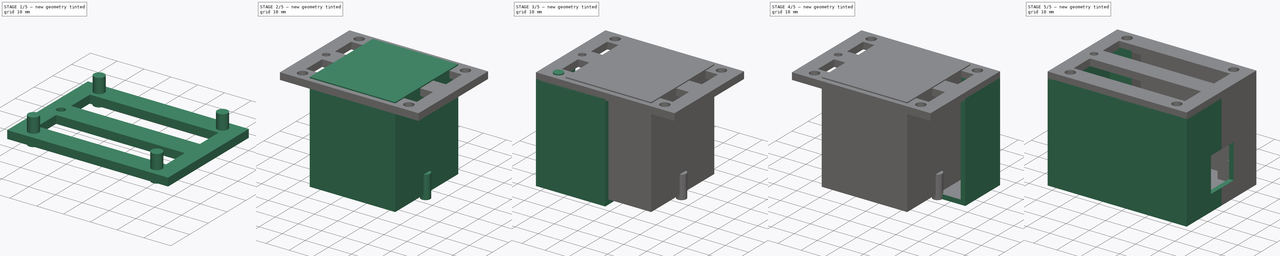
[diagram: build sequence overview — one tinted view per stage of 5, left to right]
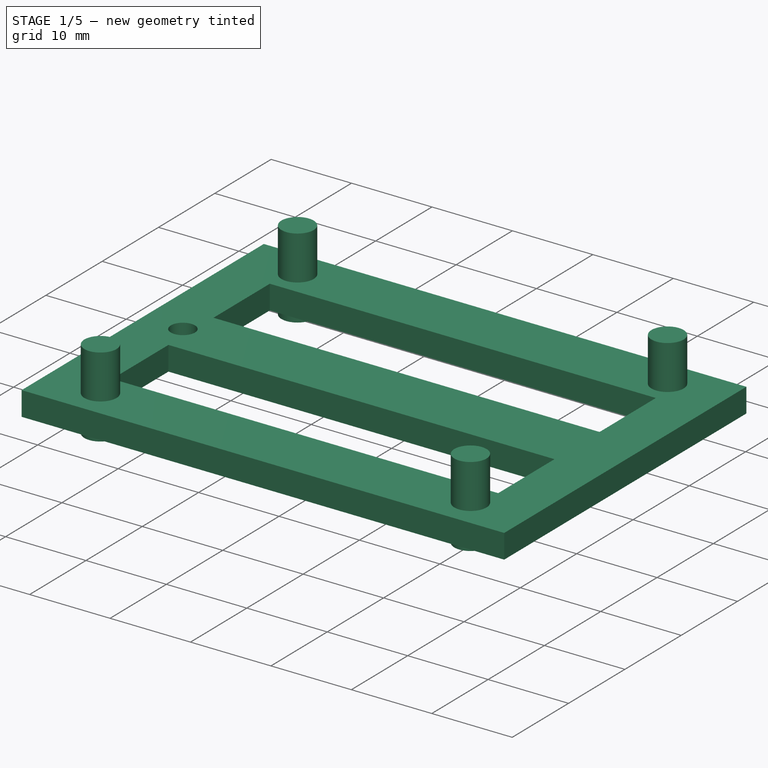
[diagram: stage 1 of 5 — iso view after this stage's code; geometry added in this stage tinted green]
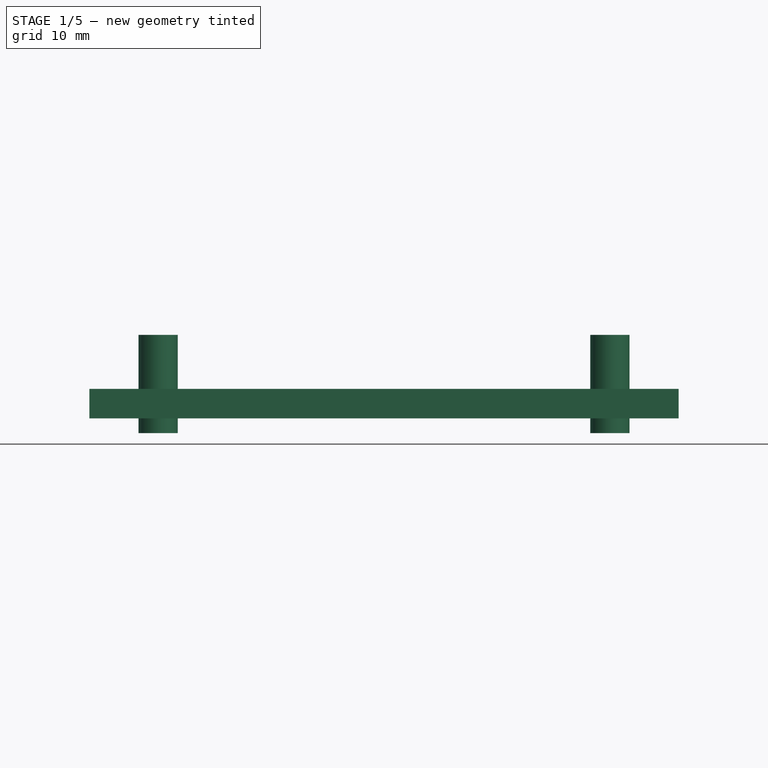
[diagram: stage 1 of 5 — front view after this stage's code; geometry added in this stage tinted green]
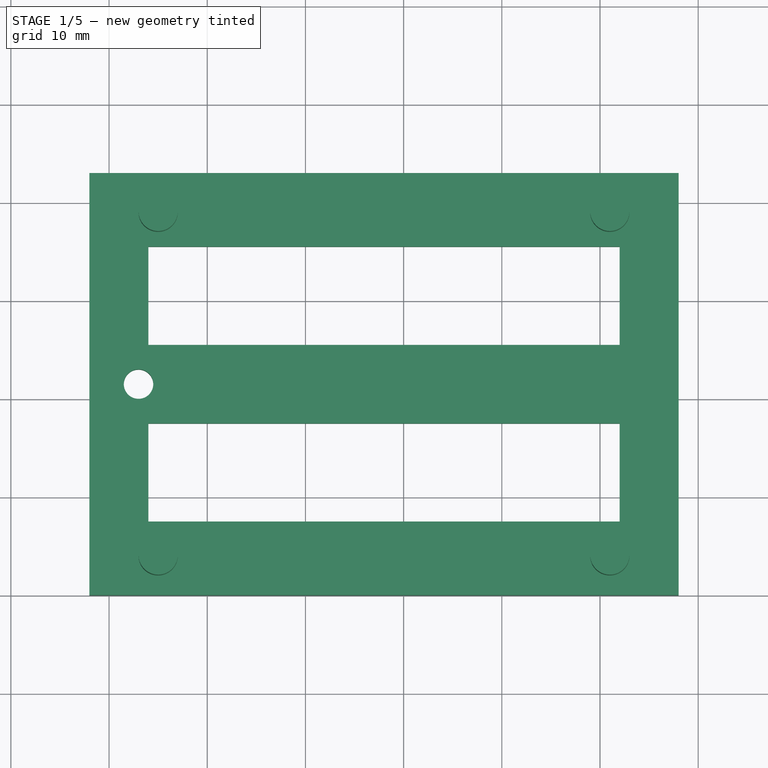
[diagram: stage 1 of 5 — top view after this stage's code; geometry added in this stage tinted green]
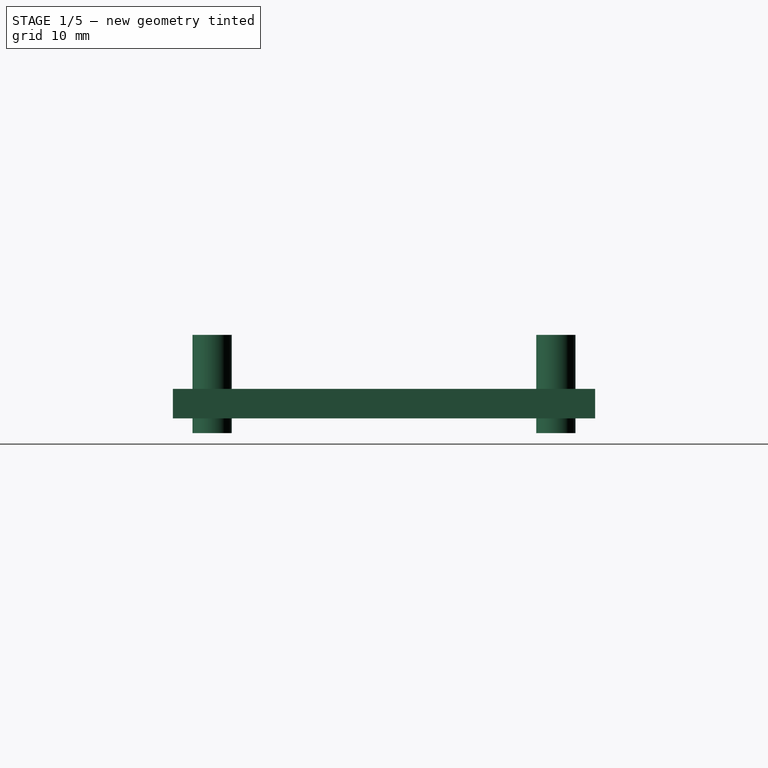
[diagram: stage 1 of 5 — right view after this stage's code; geometry added in this stage tinted green]
FCSTD DOCUMENT  (FreeCAD 0.17R13522 (Git))
Label: esp32_box
License: All rights reserved
LicenseURL: http://en.wikipedia.org/wiki/All_rights_reserved
objects: Part::Cylinder×7, Part::Box×6, Part::MultiFuse×6, Part::Cut×5, Part::Mirroring×3, Sketcher::SketchObject×1, Part::Extrusion×1
note: 29 computed .brp shape members not serialized (recipe doc carries the construction recipe); baked Part::Feature solids carry a one-line shape summary decoded from their .brp

FEATURE [Sketcher::SketchObject] Sketch001
  MapMode = 5
  sketch-geometry (14):
    g0: LineSegment StartX=-60 StartY=43 StartZ=0 EndX=0 EndY=43 EndZ=0
    g1: LineSegment StartX=0 StartY=43 StartZ=0 EndX=0 EndY=0 EndZ=0
    g2: LineSegment StartX=0 StartY=0 StartZ=0 EndX=-60 EndY=0 EndZ=0
    g3: LineSegment StartX=-60 StartY=0 StartZ=0 EndX=-60 EndY=43 EndZ=0
    g4: LineSegment StartX=-54 StartY=7.5 StartZ=0 EndX=-6 EndY=7.5 EndZ=0
    g5: LineSegment StartX=-6 StartY=7.5 StartZ=0 EndX=-6 EndY=17.5 EndZ=0
    g6: LineSegment StartX=-6 StartY=17.5 StartZ=0 EndX=-54 EndY=17.5 EndZ=0
    g7: LineSegment StartX=-54 StartY=17.5 StartZ=0 EndX=-54 EndY=7.5 EndZ=0
    g8: LineSegment [constr] StartX=-60 StartY=21.5 StartZ=0 EndX=0 EndY=21.5 EndZ=0
    g9: LineSegment StartX=-54 StartY=25.5 StartZ=0 EndX=-54 EndY=35.5 EndZ=0
    g10: LineSegment StartX=-6 StartY=25.5 StartZ=0 EndX=-54 EndY=25.5 EndZ=0
    g11: LineSegment StartX=-6 StartY=35.5 StartZ=0 EndX=-6 EndY=25.5 EndZ=0
    g12: LineSegment StartX=-54 StartY=35.5 StartZ=0 EndX=-6 EndY=35.5 EndZ=0
    g13: Circle CenterX=-55 CenterY=21.5 CenterZ=0 NormalX=0 NormalY=0 NormalZ=1 AngleXU=0 Radius=1.5
  constraints (40):
    c: Coincident(g0,g1)
    c: Coincident(g1,g2)
    c: Coincident(g2,g3)
    c: Coincident(g3,g0)
    c: Horizontal(g0)
    c: Horizontal(g2)
    c: Vertical(g1)
    c: Vertical(g3)
    c: Coincident(g4,g5)
    c: Coincident(g5,g6)
    c: Coincident(g6,g7)
    c: Coincident(g7,g4)
    c: Horizontal(g4)
    c: Horizontal(g6)
    c: Vertical(g5)
    c: Vertical(g7)
    c: DistanceX(g2,g2) = 60
    c: DistanceY(g1,g0) = 43
    c: Coincident(g-1,g1)
    c: DistanceX(g4,g-1) = 6
    c: DistanceX(g4,g4) = 48
    c: DistanceY(g2,g4) = 7.5
    c: DistanceY(g4,g6) = 10
    c: Horizontal(g8)
    c: DistanceX(g2,g8) = 0
    c: DistanceX(g8,g-1) = 0
    c: Symmetric(g-1,g0,g8)
    c: Coincident(g12,g11)
    c: Coincident(g11,g10)
    c: Coincident(g10,g9)
    c: Coincident(g9,g12)
    c: Horizontal(g12)
    c: Horizontal(g10)
    c: Vertical(g11)
    c: Vertical(g9)
    c: Symmetric(g11,g4,g8)
    c: Symmetric(g9,g6,g8)
    c: Radius(g13) = 1.5
    c: PointOnObject(g13,g8)
    c: DistanceX(g0,g13) = 5
FEATURE [Part::Extrusion] Extrude001
  Base = -> Sketch001
  Dir = (0,0,1)
  DirMode = 2
  FaceMakerClass = Part::FaceMakerBullseye
  LengthFwd = 3
  LengthRev = 0
  Placement = pos=(58,0,41.5) rot=(0,0,1;0rad)
  Solid = true
  Symmetric = false
FEATURE [Part::Cylinder] Cylinder003
  Angle = 360
  AttacherType = Attacher::AttachEngine3D
  Height = 10
  Placement = pos=(5,4,40) rot=(0,0,1;0rad)
  Radius = 2
FEATURE [Part::Cylinder] Cylinder004
  Angle = 360
  AttacherType = Attacher::AttachEngine3D
  Height = 10
  Placement = pos=(5,39,40) rot=(0,0,1;0rad)
  Radius = 2
FEATURE [Part::Cylinder] Cylinder005
  Angle = 360
  AttacherType = Attacher::AttachEngine3D
  Height = 10
  Placement = pos=(51,39,40) rot=(0,0,1;0rad)
  Radius = 2
FEATURE [Part::Cylinder] Cylinder006
  Angle = 360
  AttacherType = Attacher::AttachEngine3D
  Height = 10
  Placement = pos=(51,4,40) rot=(0,0,1;0rad)
  Radius = 2
FEATURE [Part::MultiFuse] Fusion008
  Shapes = -> [Cylinder003,Cylinder004,Cylinder005,Cylinder006]
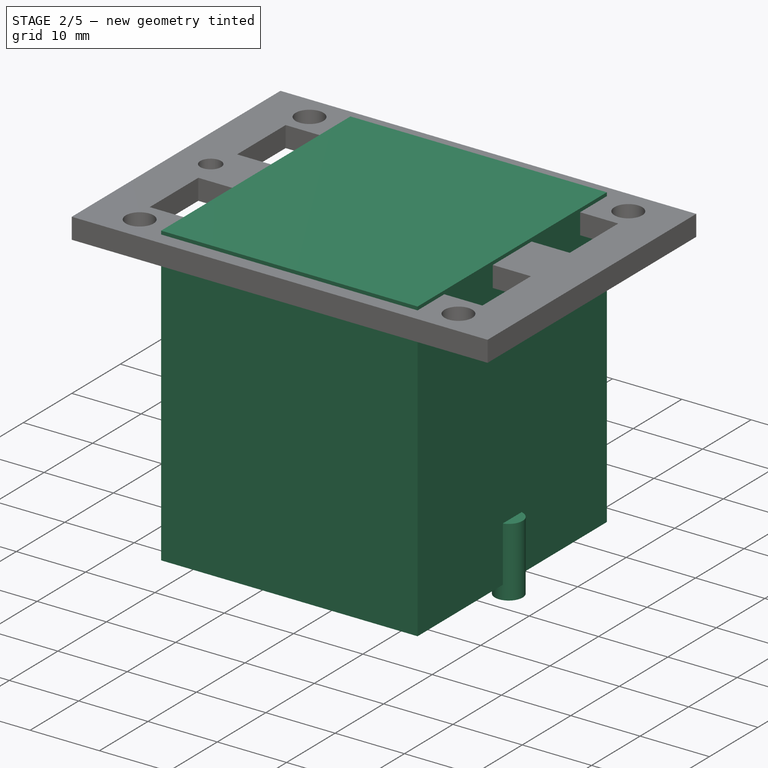
[diagram: stage 2 of 5 — iso view after this stage's code; geometry added in this stage tinted green]
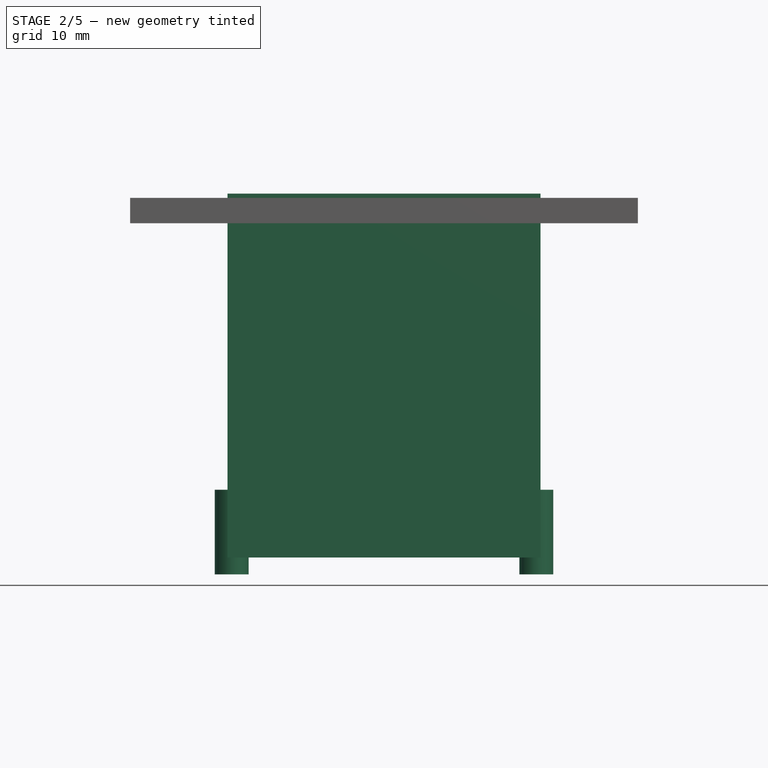
[diagram: stage 2 of 5 — front view after this stage's code; geometry added in this stage tinted green]
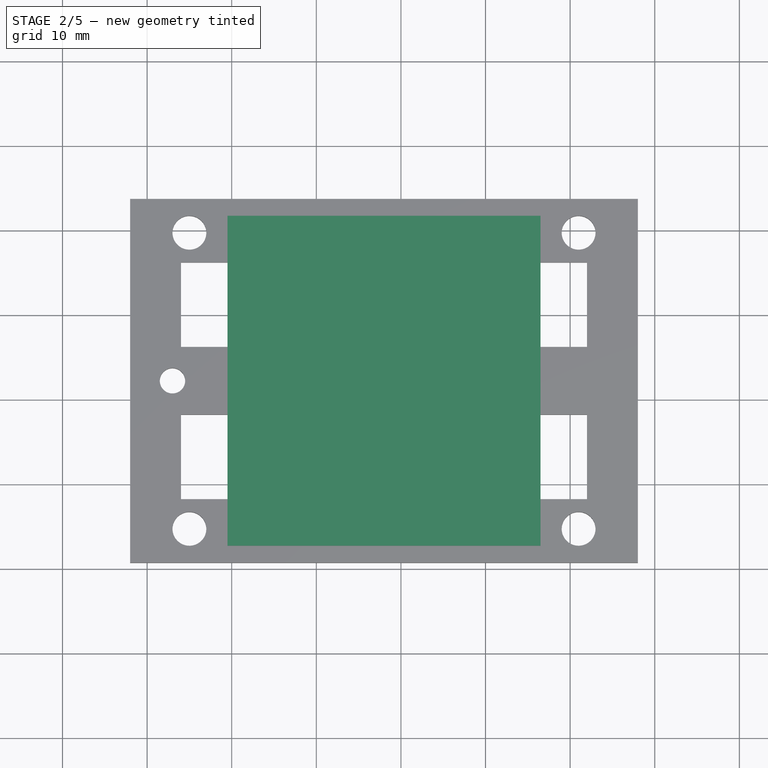
[diagram: stage 2 of 5 — top view after this stage's code; geometry added in this stage tinted green]
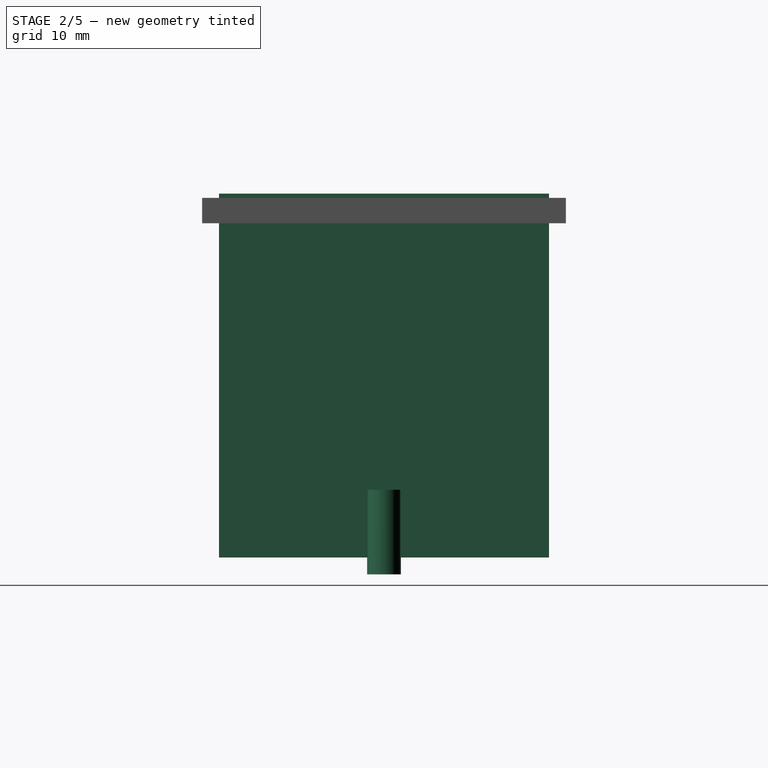
[diagram: stage 2 of 5 — right view after this stage's code; geometry added in this stage tinted green]
FEATURE [Part::Cylinder] Cylinder001
  Angle = 360
  AttacherType = Attacher::AttachEngine3D
  Height = 10
  Placement = pos=(10,21.5,0) rot=(0,0,1;0rad)
  Radius = 2
FEATURE [Part::Cylinder] Cylinder002
  Angle = 360
  AttacherType = Attacher::AttachEngine3D
  Height = 10
  Placement = pos=(46,21.5,0) rot=(0,0,1;0rad)
  Radius = 2
FEATURE [Part::MultiFuse] Fusion007  label="holes_to_box_m4"
  Shapes = -> [Cylinder001,Cylinder002]
FEATURE [Part::Box] Box005  label="Cube005"
  AttacherType = Attacher::AttachEngine3D
  Height = 43
  Length = 37
  Placement = pos=(9.5,2,2) rot=(0,0,1;0rad)
  Width = 39
FEATURE [Part::Cut] Cut004
  Base = -> Extrude001
  Tool = -> Fusion008
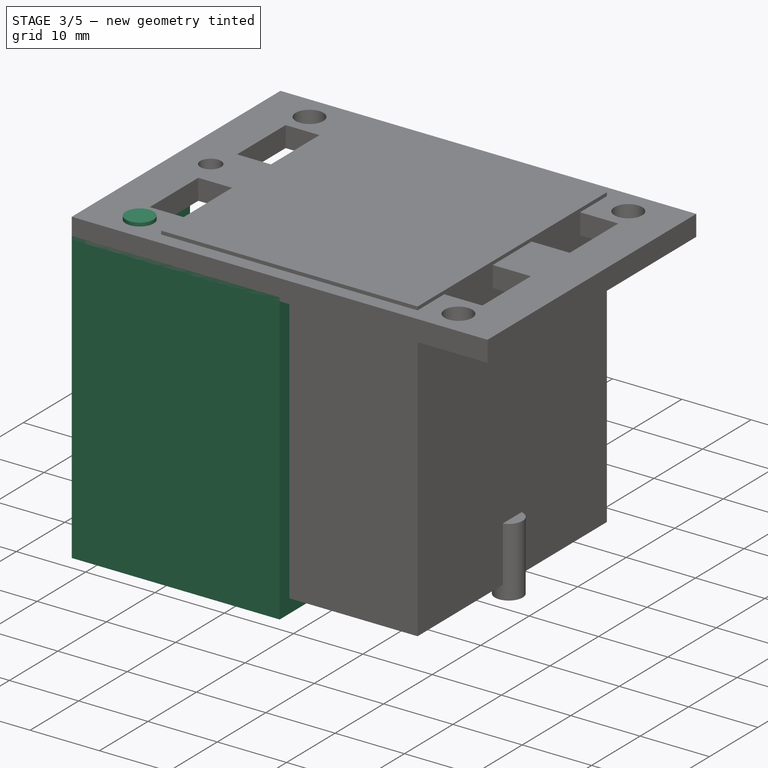
[diagram: stage 3 of 5 — iso view after this stage's code; geometry added in this stage tinted green]
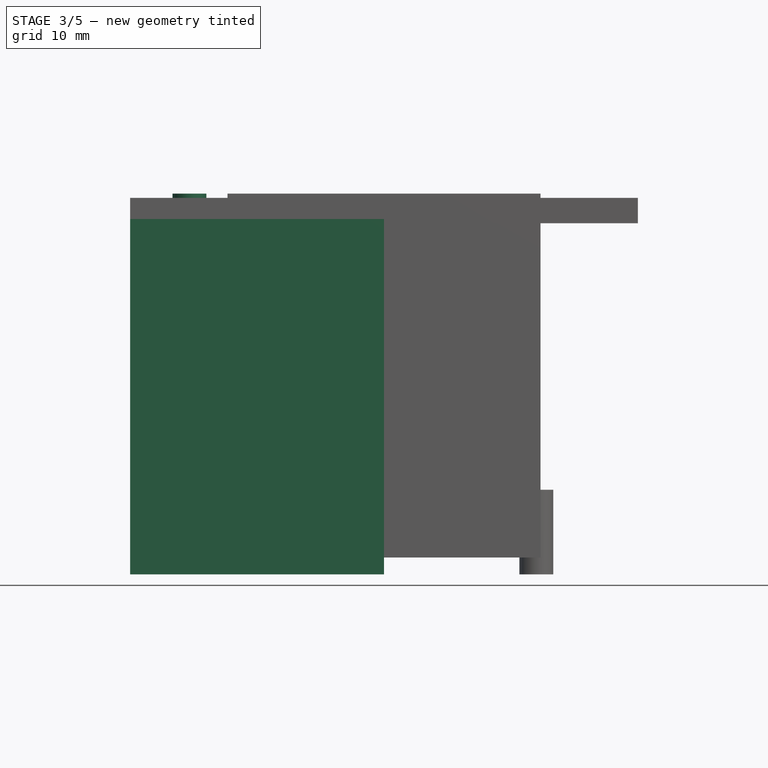
[diagram: stage 3 of 5 — front view after this stage's code; geometry added in this stage tinted green]
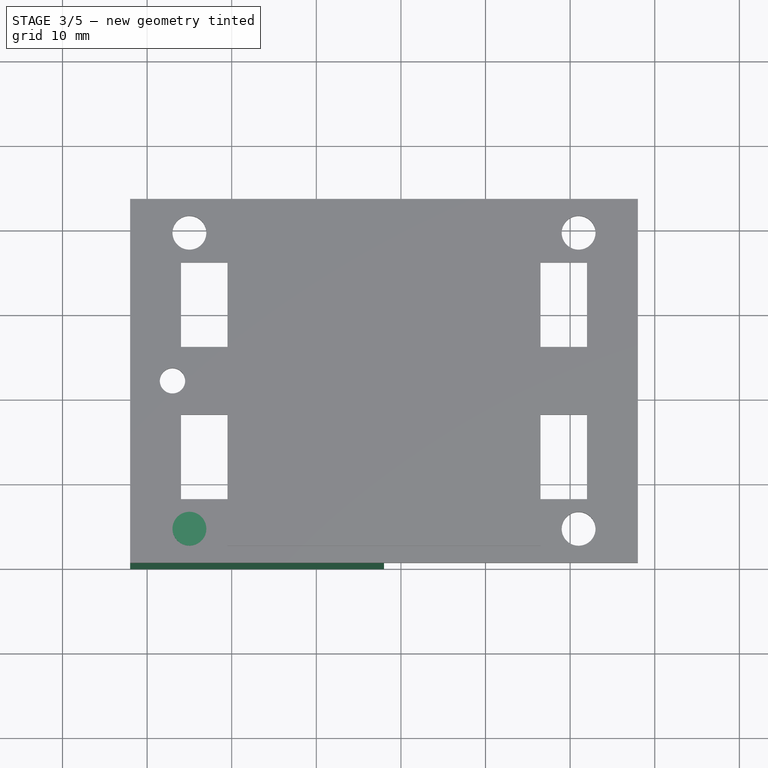
[diagram: stage 3 of 5 — top view after this stage's code; geometry added in this stage tinted green]
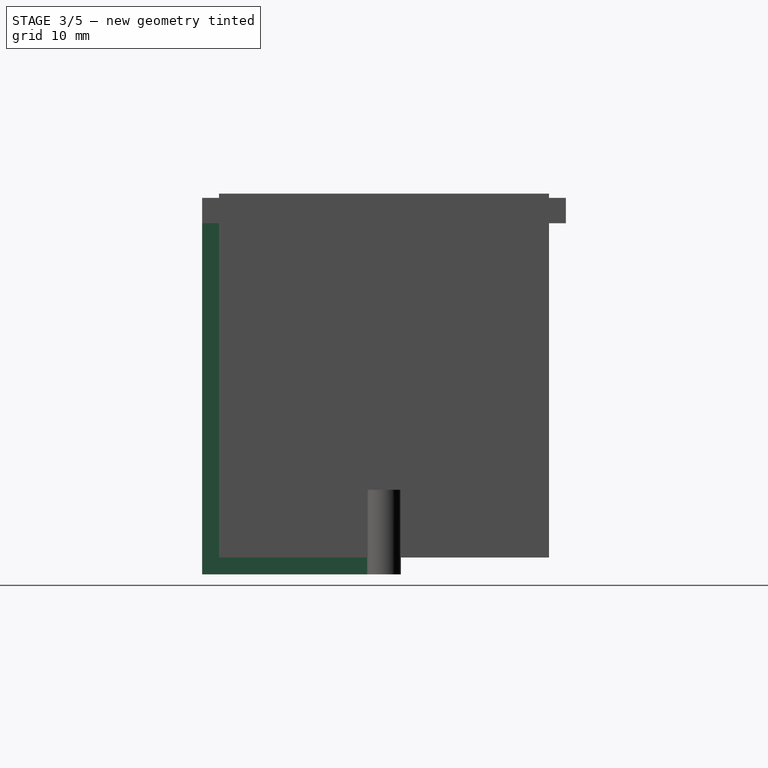
[diagram: stage 3 of 5 — right view after this stage's code; geometry added in this stage tinted green]
FEATURE [Part::Box] Box001  label="Cube001"
  AttacherType = Attacher::AttachEngine3D
  Height = 42
  Length = 28
  Width = 7.5
FEATURE [Part::Box] Box002  label="Cube002"
  AttacherType = Attacher::AttachEngine3D
  Height = 10
  Length = 3
  Placement = pos=(0,7.5,2) rot=(0,0,1;0rad)
  Width = 3
FEATURE [Part::MultiFuse] Fusion004  label="M3_003"
  Placement = pos=(5,4,0) rot=(0,0,-1;1.5708rad)
FEATURE [Part::Box] Box003  label="Cube003"
  AttacherType = Attacher::AttachEngine3D
  Height = 42
  Length = 2
  Placement = pos=(-2,0,0) rot=(0,0,1;0rad)
  Width = 21.5
FEATURE [Part::Cylinder] Cylinder
  Angle = 360
  AttacherType = Attacher::AttachEngine3D
  Height = 45
  Placement = pos=(5,4,0) rot=(0,0,1;0rad)
  Radius = 2
FEATURE [Part::MultiFuse] Fusion005  label="m4+screw"
  Shapes = -> [Fusion004,Cylinder]
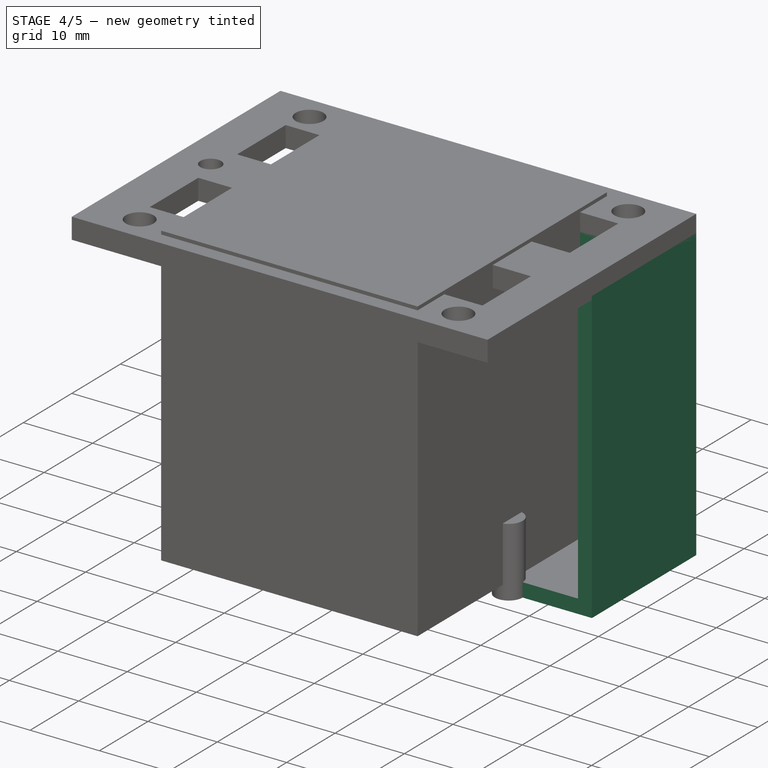
[diagram: stage 4 of 5 — iso view after this stage's code; geometry added in this stage tinted green]
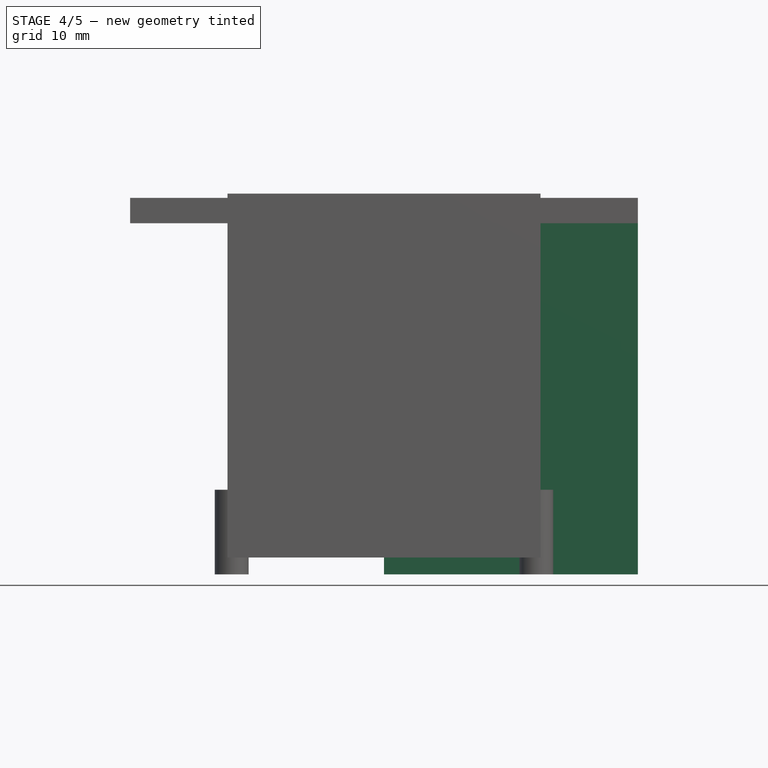
[diagram: stage 4 of 5 — front view after this stage's code; geometry added in this stage tinted green]
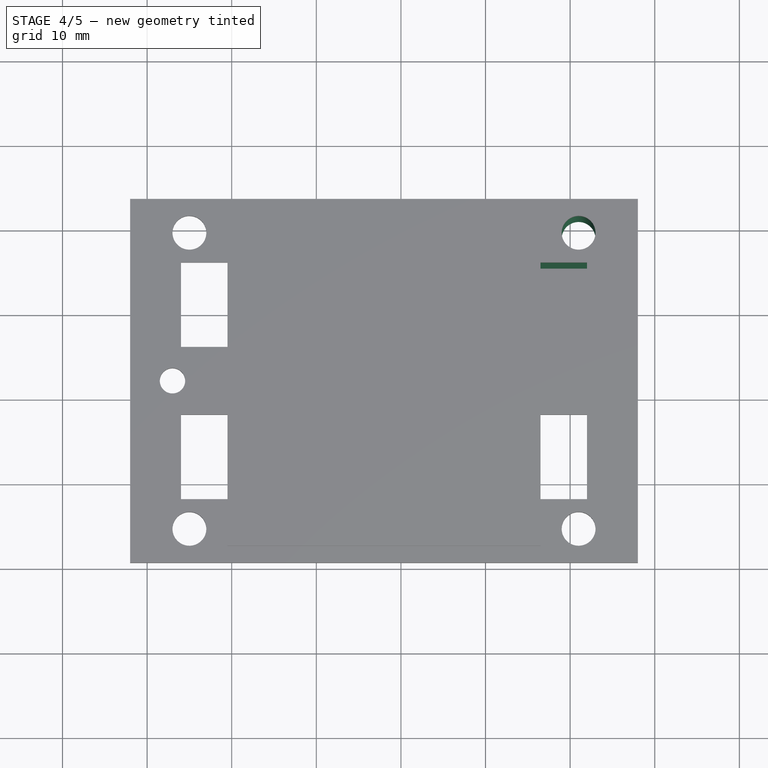
[diagram: stage 4 of 5 — top view after this stage's code; geometry added in this stage tinted green]
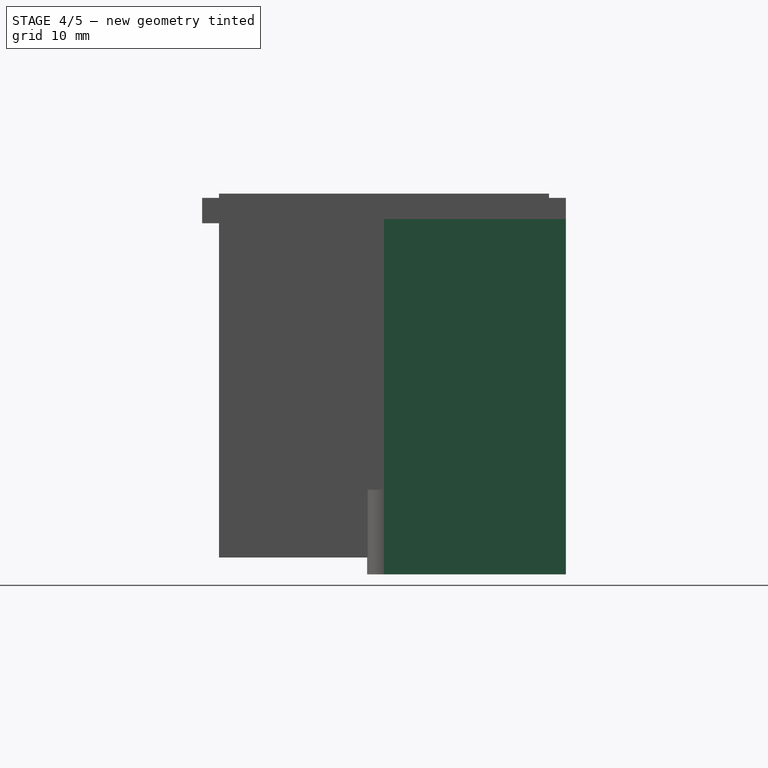
[diagram: stage 4 of 5 — right view after this stage's code; geometry added in this stage tinted green]
FEATURE [Part::Box] Box  label="Cube"
  AttacherType = Attacher::AttachEngine3D
  Height = 2
  Length = 28
  Width = 21.5
FEATURE [Part::MultiFuse] Fusion
  Shapes = -> [Box002,Box001,Box,Box003]
FEATURE [Part::Cut] Cut
  Base = -> Fusion
  Tool = -> Fusion005
FEATURE [Part::Mirroring] Part__Mirroring  label="Cut (Mirror #1)"
  Base = (28,0,0)
  Normal = (1,0,0)
  Source = -> Cut
FEATURE [Part::Mirroring] Part__Mirroring001  label="Cut (Mirror #2)"
  Base = (0,0,0)
  Normal = (0,1,0)
  Placement = pos=(0,43,0) rot=(0,0,1;0rad)
  Source = -> Part__Mirroring
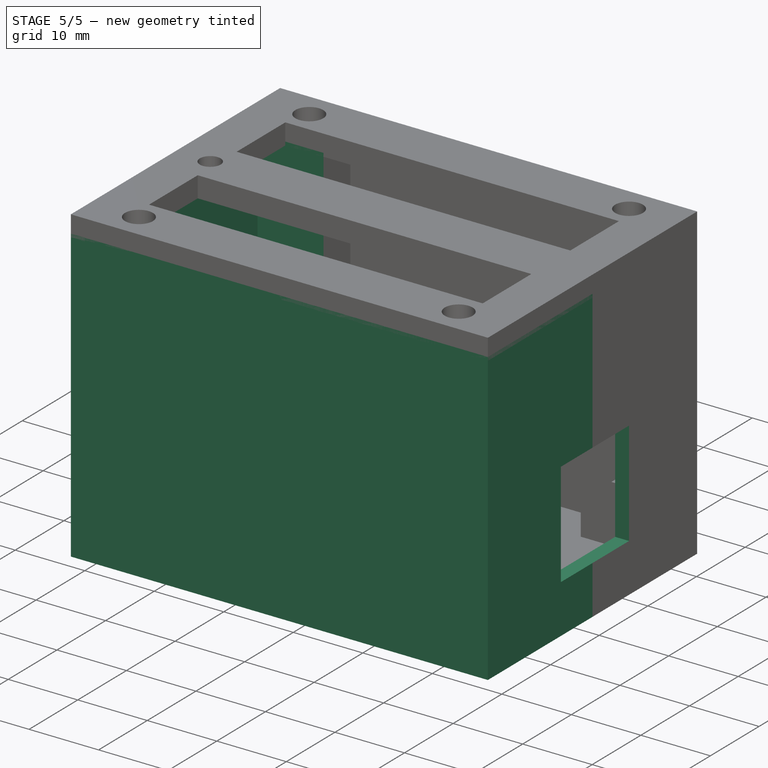
[diagram: stage 5 of 5 — iso view after this stage's code; geometry added in this stage tinted green]
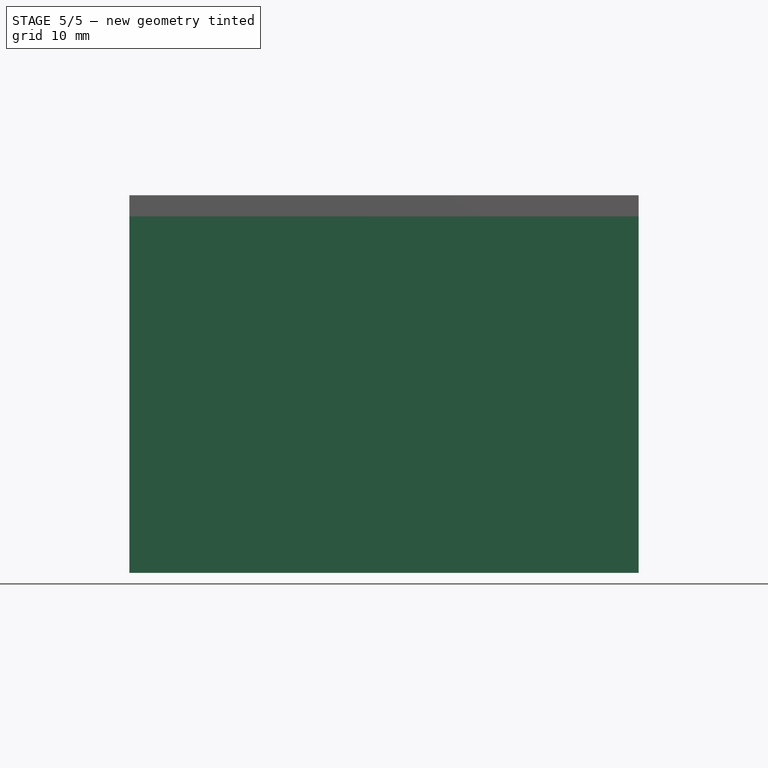
[diagram: stage 5 of 5 — front view after this stage's code; geometry added in this stage tinted green]
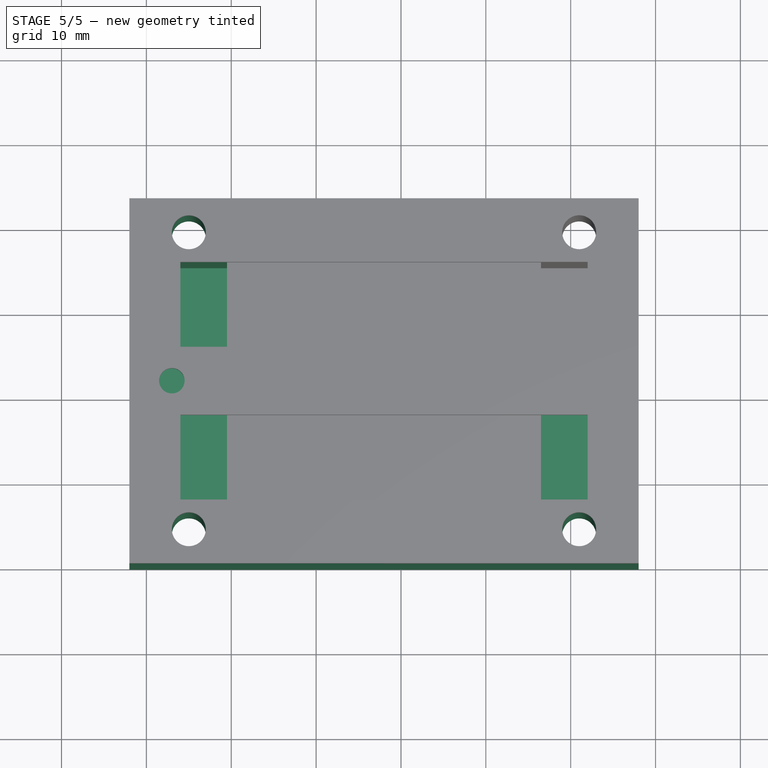
[diagram: stage 5 of 5 — top view after this stage's code; geometry added in this stage tinted green]
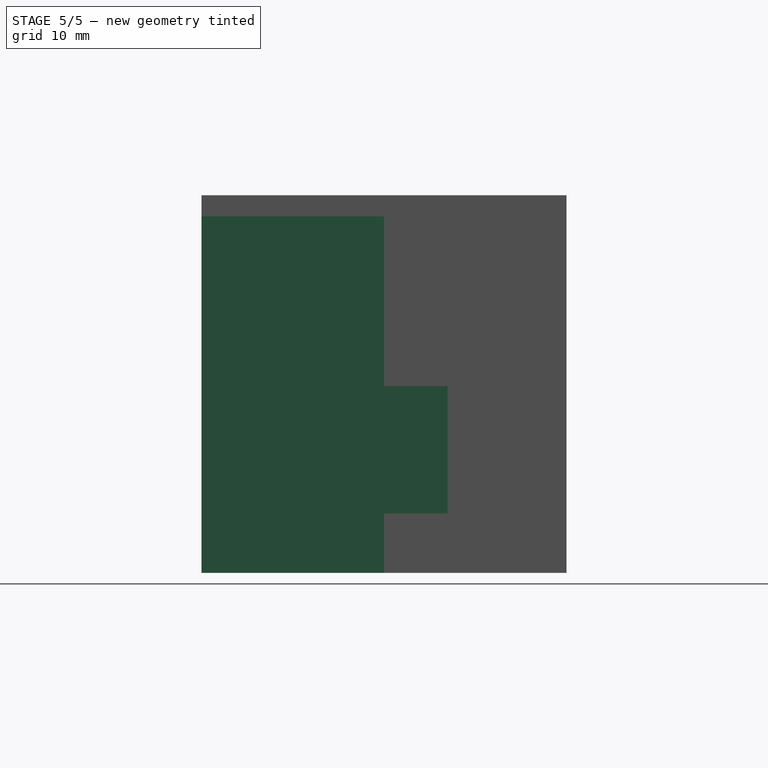
[diagram: stage 5 of 5 — right view after this stage's code; geometry added in this stage tinted green]
FEATURE [Part::Mirroring] Part__Mirroring002  label="Cut (Mirror #3)"
  Base = (0,0,0)
  Normal = (1,0,0)
  Placement = pos=(56,0,0) rot=(0,0,1;0rad)
  Source = -> Part__Mirroring001
FEATURE [Part::Box] Box004  label="Cube004"
  AttacherType = Attacher::AttachEngine3D
  Height = 15
  Length = 10
  Placement = pos=(51,15,7) rot=(0,0,1;0rad)
  Width = 14
FEATURE [Part::MultiFuse] Fusion006  label="maincube"
  Shapes = -> [Part__Mirroring002,Part__Mirroring,Part__Mirroring001,Cut]
FEATURE [Part::Cut] Cut001
  Base = -> Fusion006
  Tool = -> Box004
FEATURE [Part::Cut] Cut002  label="esp32_box"
  Base = -> Cut001
  Tool = -> Fusion007
FEATURE [Part::Cut] Cut003
  Base = -> Cut002
  Tool = -> Box005
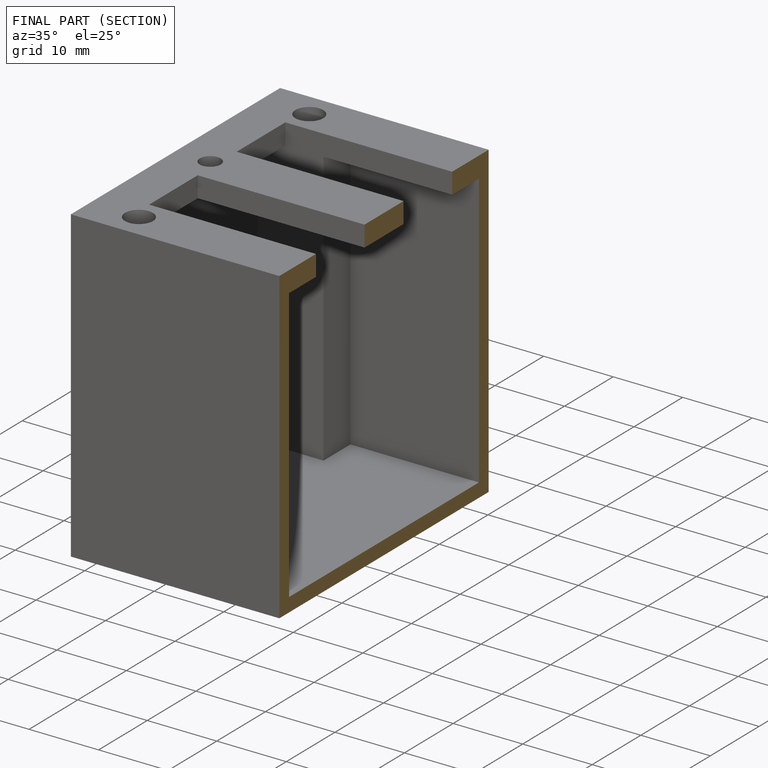
[diagram: finished part — half-section view (interior)]
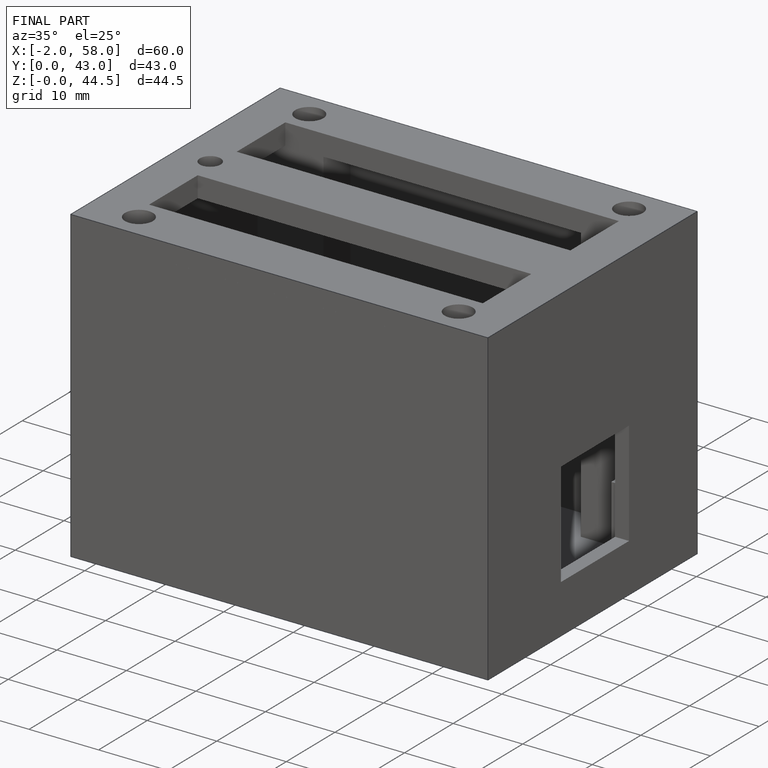
[diagram: finished part — iso view with bounding-box wireframe]
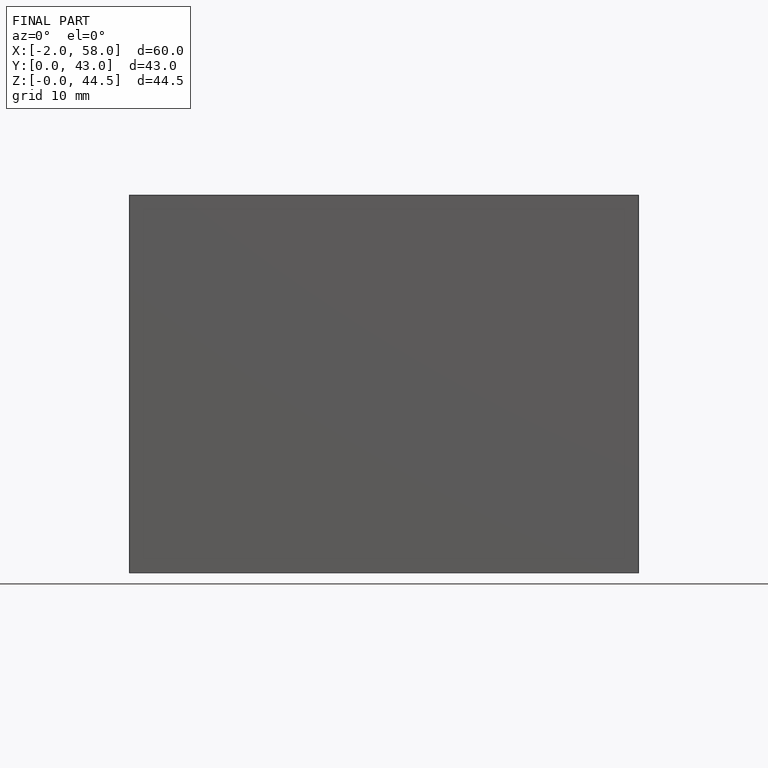
[diagram: finished part — front view with bounding-box wireframe]
